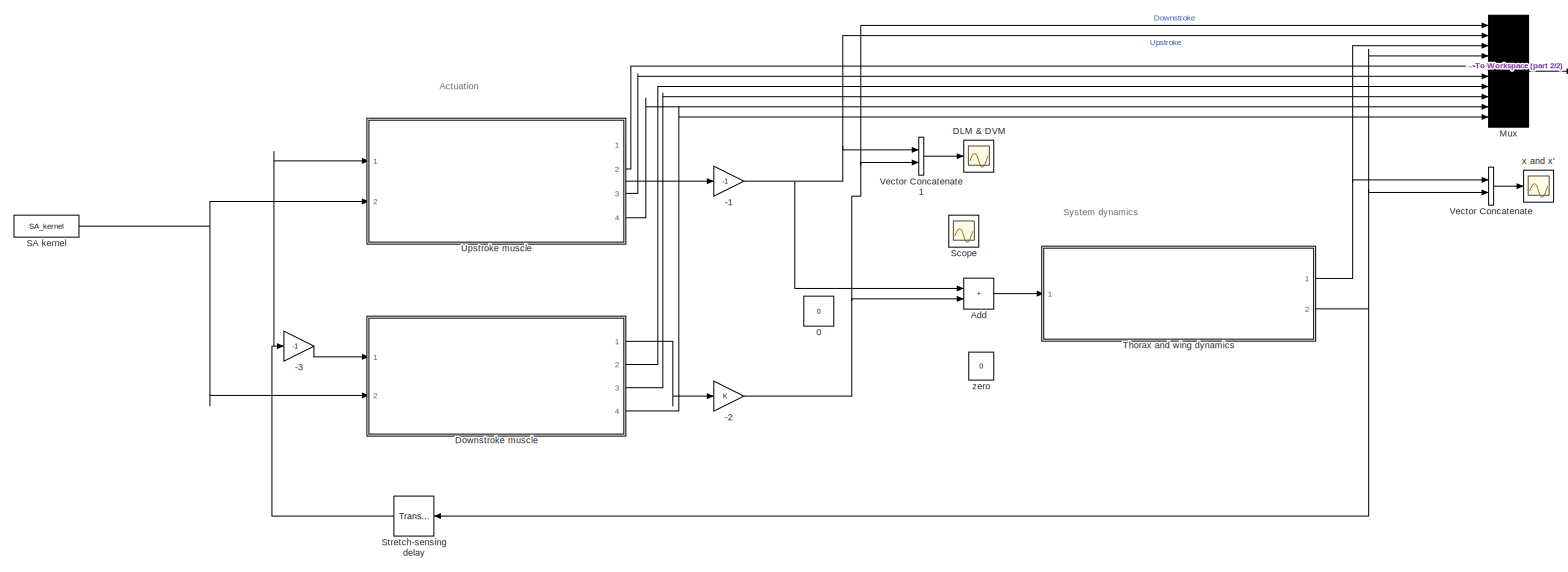
[diagram: root canvas - part 1/2, most of the canvas]
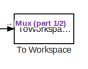
[diagram: root canvas - part 2/2, top right region]
MODEL slx_3df853d10b9b
KIND model
CONFIG AbsTol = auto
CONFIG EnableMultiTasking = off
CONFIG FixedStep = auto
CONFIG MaxStep = .01
CONFIG MinStep = auto
CONFIG RelTol = 1e-3
CONFIG SampleTimeConstraint = Unconstrained
CONFIG Solver = ode45
CONFIG SolverName = ode45
CONFIG StartTime = 0.0
CONFIG StopTime = 1000
BLOCK [Gain] -1
  Gain = -1
BLOCK [Gain] -2
BLOCK [Gain] -3
  Gain = -1
BLOCK [Constant] 0
  IOType = siggen
  Value = 0
BLOCK [Sum] Add
  IconShape = rectangular
  Ports = [2, 1]
BLOCK [Scope] DLM & DVM
  Floating = off
  NumInputPorts = 1
  Ports = [1]
  ScopeSpecificationString = Simulink.scopes.TimeScopeBlockCfg('CurrentConfiguration', extmgr.ConfigurationSet(extmgr.Configuration('Core','General UI',true),extmgr.Configuration('Core','Source UI',true),extmgr.Configuration('Sources','WiredSimulink',true,'DataLoggingVariableName','ScopeData1'),extmgr.Configuration('Visuals','Time Domain',true,'SerializedDisplays',{struct('MinYLimReal','-18.22479','MaxYLimReal','17.12941','YL...<+1455ch>
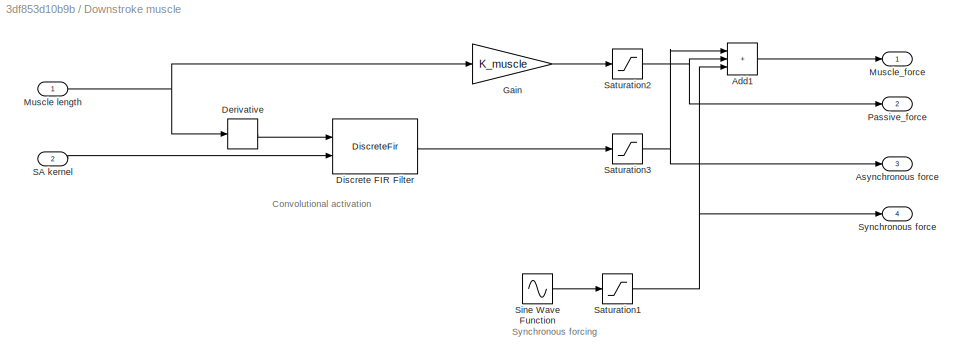
BLOCK [SubSystem] Downstroke muscle
  Ports = [2, 4]
  RequestExecContextInheritance = off
BLOCK [Sum] Downstroke muscle/Add1
  IconShape = rectangular
  Inputs = +++
  Ports = [3, 1]
BLOCK [Outport] Downstroke muscle/Asynchronous force
  Port = 3
BLOCK [Derivative] Downstroke muscle/Derivative
BLOCK [DiscreteFir] Downstroke muscle/Discrete FIR Filter
  CoefSource = Input port
  Coefficients = [0, 0, 2]
  InputPortMap = u0,u1
  InputProcessing = Columns as channels (frame based)
  OutputPortMap = o0
  Ports = [2, 1]
BLOCK [Gain] Downstroke muscle/Gain
  Gain = K_muscle
BLOCK [Inport] Downstroke muscle/Muscle length
BLOCK [Outport] Downstroke muscle/Muscle_force
BLOCK [Outport] Downstroke muscle/Passive_force
  Port = 2
BLOCK [Inport] Downstroke muscle/SA kernel
  Port = 2
BLOCK [Saturate] Downstroke muscle/Saturation1
  LowerLimit = 0
  UpperLimit = Inf
BLOCK [Saturate] Downstroke muscle/Saturation2
  LowerLimit = 0
  UpperLimit = Inf
BLOCK [Saturate] Downstroke muscle/Saturation3
  LowerLimit = 0
  UpperLimit = Inf
BLOCK [Sin] Downstroke muscle/Sine Wave Function
  Amplitude = synch_gain
  Frequency = synch_w
  Phase = pi
  Ports = [0, 1]
  SampleTime = 0
BLOCK [Outport] Downstroke muscle/Synchronous force
  Port = 4
BLOCK [Mux] Mux
  DisplayOption = bar
  Inputs = 10
  Ports = [10, 1]
BLOCK [Constant] SA kernel
  Value = SA_kernel
BLOCK [Scope] Scope
  Floating = off
  IOType = viewer
  NumInputPorts = 1
  Ports = []
  ScopeSpecificationString = Simulink.scopes.TimeScopeBlockCfg('CurrentConfiguration', extmgr.ConfigurationSet(extmgr.Configuration('Core','General UI',true),extmgr.Configuration('Core','Source UI',true),extmgr.Configuration('Sources','WiredSimulink',true,'DataLoggingVariableName','ScopeData1'),extmgr.Configuration('Visuals','Time Domain',true,'SerializedDisplays',{struct('MinYLimReal','14.999999999998','MaxYLimReal','15.0000...<+1474ch>
BLOCK [TransportDelay] Stretch-sensing delay
  Commented = through
  DelayTime = 0
  Ports = [1, 1]
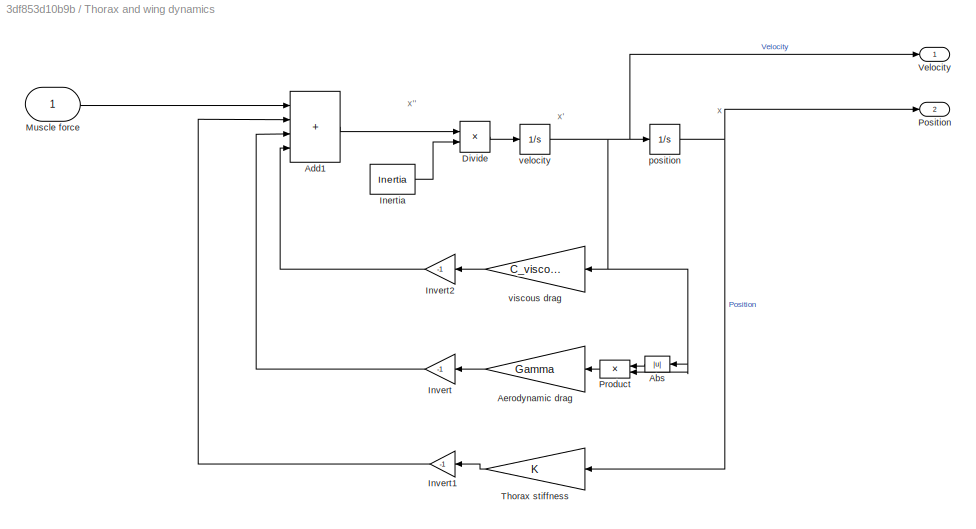
BLOCK [SubSystem] Thorax and wing dynamics
  Ports = [1, 2]
  RequestExecContextInheritance = off
BLOCK [Abs] Thorax and wing dynamics/Abs
  NameLocation = top
  SaturateOnIntegerOverflow = off
BLOCK [Sum] Thorax and wing dynamics/Add1
  IconShape = rectangular
  Inputs = ++++
  Ports = [4, 1]
BLOCK [Gain] Thorax and wing dynamics/Aerodynamic drag
  Gain = Gamma
  NameLocation = top
BLOCK [Product] Thorax and wing dynamics/Divide
  Inputs = */
  Ports = [2, 1]
BLOCK [Constant] Thorax and wing dynamics/Inertia
  Value = Inertia
BLOCK [Gain] Thorax and wing dynamics/Invert
  Gain = -1
  NameLocation = top
BLOCK [Gain] Thorax and wing dynamics/Invert1
  Gain = -1
  NameLocation = top
BLOCK [Gain] Thorax and wing dynamics/Invert2
  Gain = -1
  NameLocation = top
BLOCK [Inport] Thorax and wing dynamics/Muscle force
BLOCK [Outport] Thorax and wing dynamics/Position
  Port = 2
BLOCK [Product] Thorax and wing dynamics/Product
  NameLocation = top
  Ports = [2, 1]
BLOCK [Gain] Thorax and wing dynamics/Thorax stiffness
  Gain = K
  NameLocation = top
BLOCK [Outport] Thorax and wing dynamics/Velocity
BLOCK [Integrator] Thorax and wing dynamics/position
  ContinuousStateAttributes = 'Position'
  InitialCondition = x_initial
  Ports = [1, 1]
BLOCK [Integrator] Thorax and wing dynamics/velocity
  ContinuousStateAttributes = 'Velocity'
  InitialCondition = v_initial
  Ports = [1, 1]
BLOCK [Gain] Thorax and wing dynamics/viscous drag
  Gain = C_viscous
  NameLocation = top
BLOCK [ToWorkspace] To Workspace
  FixptAsFi = on
  MaxDataPoints = inf
  Ports = [1]
  SampleTime = -1
  SaveFormat = Timeseries
  VariableName = simout
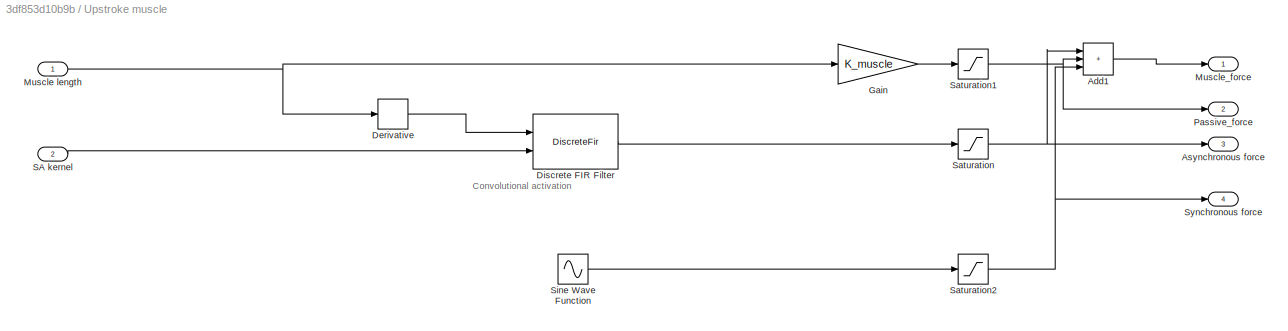
BLOCK [SubSystem] Upstroke muscle
  Ports = [2, 4]
  RequestExecContextInheritance = off
BLOCK [Sum] Upstroke muscle/Add1
  IconShape = rectangular
  Inputs = +++
  Ports = [3, 1]
BLOCK [Outport] Upstroke muscle/Asynchronous force
  Port = 3
BLOCK [Derivative] Upstroke muscle/Derivative
BLOCK [DiscreteFir] Upstroke muscle/Discrete FIR Filter
  CoefSource = Input port
  Coefficients = [0, 0, 2]
  InputPortMap = u0,u1
  InputProcessing = Columns as channels (frame based)
  OutputPortMap = o0
  Ports = [2, 1]
BLOCK [Gain] Upstroke muscle/Gain
  Gain = K_muscle
BLOCK [Inport] Upstroke muscle/Muscle length
BLOCK [Outport] Upstroke muscle/Muscle_force
BLOCK [Outport] Upstroke muscle/Passive_force
  Port = 2
BLOCK [Inport] Upstroke muscle/SA kernel
  Port = 2
BLOCK [Saturate] Upstroke muscle/Saturation
  LowerLimit = 0
  UpperLimit = Inf
BLOCK [Saturate] Upstroke muscle/Saturation1
  LowerLimit = 0
  UpperLimit = Inf
BLOCK [Saturate] Upstroke muscle/Saturation2
  LowerLimit = 0
  UpperLimit = Inf
BLOCK [Sin] Upstroke muscle/Sine Wave Function
  Amplitude = synch_gain
  Frequency = synch_w
  Ports = [0, 1]
  SampleTime = 0
BLOCK [Outport] Upstroke muscle/Synchronous force
  Port = 4
BLOCK [Concatenate] Vector Concatenate
  Ports = [2, 1]
BLOCK [Concatenate] Vector Concatenate1
  Ports = [2, 1]
BLOCK [Scope] x and x'
  Floating = off
  NumInputPorts = 1
  Ports = [1]
  ScopeSpecificationString = Simulink.scopes.TimeScopeBlockCfg('CurrentConfiguration', extmgr.ConfigurationSet(extmgr.Configuration('Core','General UI',true),extmgr.Configuration('Core','Source UI',true),extmgr.Configuration('Sources','WiredSimulink',true),extmgr.Configuration('Visuals','Time Domain',true,'SerializedDisplays',{struct('MinYLimReal','-4.75619','MaxYLimReal','22.75069','YLabelReal','','MinYLimMag','0.00000','Max...<+2097ch>
BLOCK [Constant] zero
  Commented = on
  Value = 0
ANNOTATION (root): Actuation
ANNOTATION (root): System dynamics
ANNOTATION Downstroke muscle: Convolutional activation
ANNOTATION Downstroke muscle: Synchronous forcing
ANNOTATION Thorax and wing dynamics: x''
ANNOTATION Thorax and wing dynamics: x'
ANNOTATION Thorax and wing dynamics: x
ANNOTATION Upstroke muscle: Convolutional activation
NET -1:1 -> Add:1, Mux:2, Vector Concatenate1:1
NET -2:1 -> Add:2, Mux:1, Vector Concatenate1:2
LINE -3:1 -> Downstroke muscle:1
LINE Add:1 -> Thorax and wing dynamics:1
LINE Downstroke muscle/Add1:1 -> Downstroke muscle/Muscle_force:1
LINE Downstroke muscle/Derivative:1 -> Downstroke muscle/Discrete FIR Filter:1
LINE Downstroke muscle/Discrete FIR Filter:1 -> Downstroke muscle/Saturation3:1
LINE Downstroke muscle/Gain:1 -> Downstroke muscle/Saturation2:1
NET Downstroke muscle/Muscle length:1 -> Downstroke muscle/Derivative:1, Downstroke muscle/Gain:1
LINE Downstroke muscle/SA kernel:1 -> Downstroke muscle/Discrete FIR Filter:2
NET Downstroke muscle/Saturation1:1 -> Downstroke muscle/Add1:3, Downstroke muscle/Synchronous force:1
NET Downstroke muscle/Saturation2:1 -> Downstroke muscle/Add1:2, Downstroke muscle/Passive_force:1
NET Downstroke muscle/Saturation3:1 -> Downstroke muscle/Add1:1, Downstroke muscle/Asynchronous force:1
LINE Downstroke muscle/Sine Wave Function:1 -> Downstroke muscle/Saturation1:1
LINE Downstroke muscle:1 -> -2:1
LINE Downstroke muscle:2 -> Mux:7
LINE Downstroke muscle:3 -> Mux:8
LINE Downstroke muscle:4 -> Mux:10
LINE Mux:1 -> To Workspace:1
NET SA kernel:1 -> Downstroke muscle:2, Upstroke muscle:2
NET Stretch-sensing delay:1 -> -3:1, Upstroke muscle:1
LINE Thorax and wing dynamics/Abs:1 -> Thorax and wing dynamics/Product:1
LINE Thorax and wing dynamics/Add1:1 -> Thorax and wing dynamics/Divide:1
LINE Thorax and wing dynamics/Aerodynamic drag:1 -> Thorax and wing dynamics/Invert:1
LINE Thorax and wing dynamics/Divide:1 -> Thorax and wing dynamics/velocity:1
LINE Thorax and wing dynamics/Inertia:1 -> Thorax and wing dynamics/Divide:2
LINE Thorax and wing dynamics/Invert1:1 -> Thorax and wing dynamics/Add1:2
LINE Thorax and wing dynamics/Invert2:1 -> Thorax and wing dynamics/Add1:4
LINE Thorax and wing dynamics/Invert:1 -> Thorax and wing dynamics/Add1:3
LINE Thorax and wing dynamics/Muscle force:1 -> Thorax and wing dynamics/Add1:1
LINE Thorax and wing dynamics/Product:1 -> Thorax and wing dynamics/Aerodynamic drag:1
LINE Thorax and wing dynamics/Thorax stiffness:1 -> Thorax and wing dynamics/Invert1:1
NET Thorax and wing dynamics/position:1 -> Thorax and wing dynamics/Position:1, Thorax and wing dynamics/Thorax stiffness:1
NET Thorax and wing dynamics/velocity:1 -> Thorax and wing dynamics/Abs:1, Thorax and wing dynamics/Product:2, Thorax and wing dynamics/Velocity:1, Thorax and wing dynamics/position:1, Thorax and wing dynamics/viscous drag:1
LINE Thorax and wing dynamics/viscous drag:1 -> Thorax and wing dynamics/Invert2:1
NET Thorax and wing dynamics:1 -> Mux:3, Vector Concatenate:1
NET Thorax and wing dynamics:2 -> Mux:4, Stretch-sensing delay:1, Vector Concatenate:2
LINE Upstroke muscle/Add1:1 -> Upstroke muscle/Muscle_force:1
LINE Upstroke muscle/Derivative:1 -> Upstroke muscle/Discrete FIR Filter:1
LINE Upstroke muscle/Discrete FIR Filter:1 -> Upstroke muscle/Saturation:1
LINE Upstroke muscle/Gain:1 -> Upstroke muscle/Saturation1:1
NET Upstroke muscle/Muscle length:1 -> Upstroke muscle/Derivative:1, Upstroke muscle/Gain:1
LINE Upstroke muscle/SA kernel:1 -> Upstroke muscle/Discrete FIR Filter:2
NET Upstroke muscle/Saturation1:1 -> Upstroke muscle/Add1:2, Upstroke muscle/Passive_force:1
NET Upstroke muscle/Saturation2:1 -> Upstroke muscle/Add1:3, Upstroke muscle/Synchronous force:1
NET Upstroke muscle/Saturation:1 -> Upstroke muscle/Add1:1, Upstroke muscle/Asynchronous force:1
LINE Upstroke muscle/Sine Wave Function:1 -> Upstroke muscle/Saturation2:1
LINE Upstroke muscle:1 -> -1:1
LINE Upstroke muscle:2 -> Mux:5
LINE Upstroke muscle:3 -> Mux:6
LINE Upstroke muscle:4 -> Mux:9
LINE Vector Concatenate1:1 -> DLM & DVM:1
LINE Vector Concatenate:1 -> x and x':1
note: NET lines group one-source signal fan-out (src -> all destinations, sorted); 1:1 wires keep LINE
